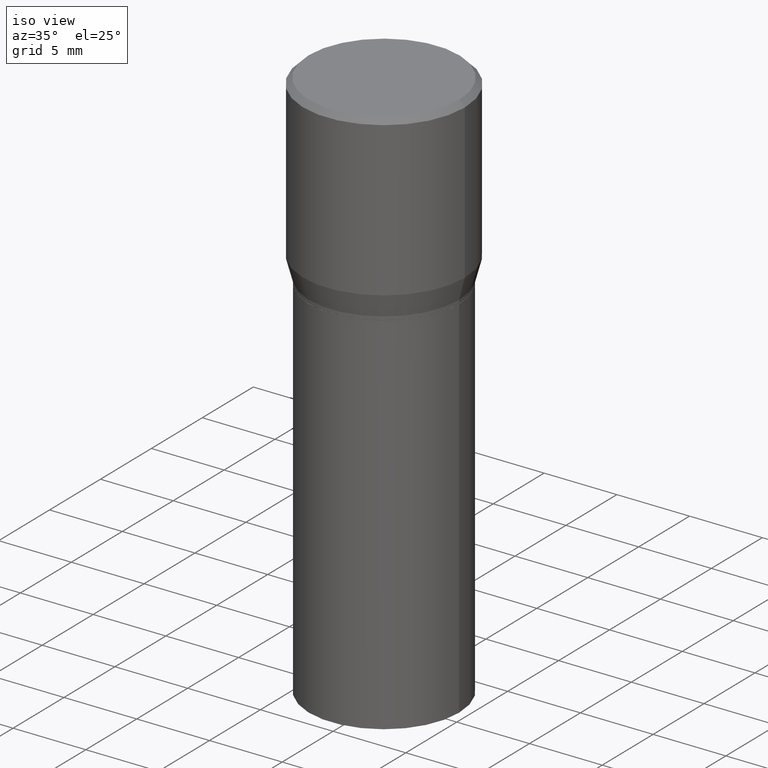
[diagram: clean part render]
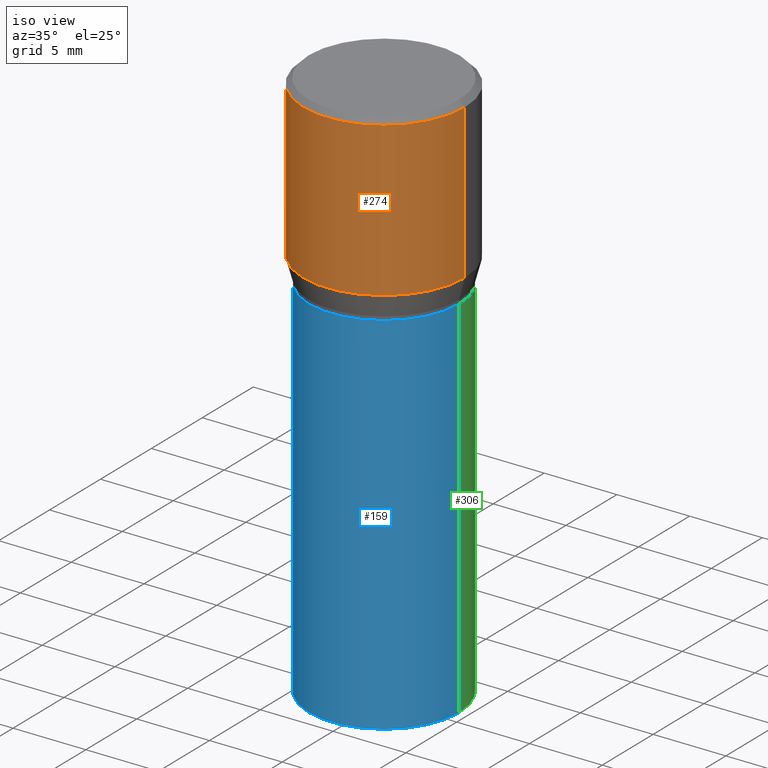
[diagram: same view with three faces highlighted in distinct colors, each labeled with its STEP entity id]
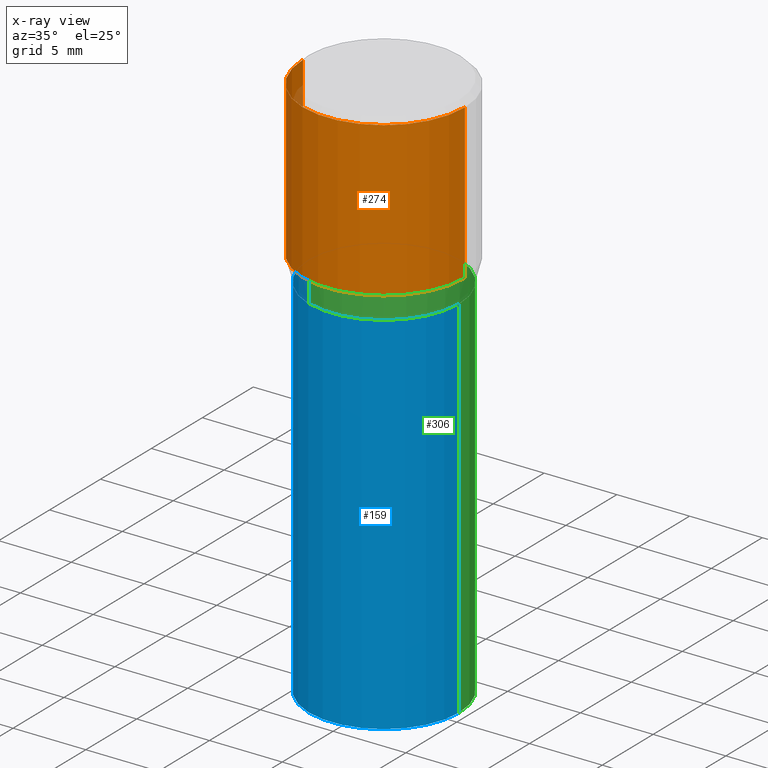
[diagram: x-ray of the same camera — body ghosted, the three highlighted faces saturated]
A machine part, iso view with three faces highlighted in distinct colors.
The next image is the same camera in x-ray (body ghosted, the three faces saturated) — at least one of them is partly hidden behind the body in this view.
Their STEP definitions:

[orange] entity #274 — the highlighted cylindrical surface (partial cylindrical patch) has radius 5.5562 mm, axis along (-0, 0, 1).
#13 = CARTESIAN_POINT ( 'NONE',  ( -0.2187500000000000000, 7.746759649129616577E-16, -0.01499999999999999944 ) ) ;
#25 = CARTESIAN_POINT ( 'NONE',  ( 0.2187500000000000000, -3.034423404785738170E-15, -0.4315934048615475138 ) ) ;
#27 = VERTEX_POINT ( 'NONE', #240 ) ;
#28 = ORIENTED_EDGE ( 'NONE', *, *, #464, .F. ) ;
#38 = AXIS2_PLACEMENT_3D ( 'NONE', #197, #88, #453 ) ;
#88 = DIRECTION ( 'NONE',  ( -2.445468806185136597E-29, 3.491481338843145583E-15, 1.000000000000000000 ) ) ;
#103 = CARTESIAN_POINT ( 'NONE',  ( 1.055448208544146876E-29, -1.506900319041867721E-15, -0.4315934048615475138 ) ) ;
#109 = CIRCLE ( 'NONE', #296, 0.2187500000000000000 ) ;
#143 = CARTESIAN_POINT ( 'NONE',  ( 0.2187500000000000000, -1.527523085743870843E-15, 1.066663669705360885E-29 ) ) ;
#148 = CARTESIAN_POINT ( 'NONE',  ( 0.2187500000000000000, -1.579895305826517922E-15, -0.01499999999999999944 ) ) ;
#165 = AXIS2_PLACEMENT_3D ( 'NONE', #447, #329, #367 ) ;
#168 = EDGE_CURVE ( 'NONE', #437, #299, #176, .T. ) ;
#176 = LINE ( 'NONE', #143, #418 ) ;
#179 = DIRECTION ( 'NONE',  ( -2.445468806185136597E-29, 3.491481338843145583E-15, 1.000000000000000000 ) ) ;
#184 = EDGE_CURVE ( 'NONE', #27, #437, #109, .T. ) ;
#185 = EDGE_LOOP ( 'NONE', ( #28, #330, #225, #415 ) ) ;
#197 = CARTESIAN_POINT ( 'NONE',  ( 3.668203209277705088E-31, -5.237222008264718399E-17, -0.01499999999999999944 ) ) ;
#200 = DIRECTION ( 'NONE',  ( -2.445468806185136877E-29, 3.491481338843145188E-15, 1.000000000000000000 ) ) ;
#225 = ORIENTED_EDGE ( 'NONE', *, *, #168, .T. ) ;
#240 = CARTESIAN_POINT ( 'NONE',  ( -0.2187500000000000000, 4.741191543335144142E-17, -0.4315934048615475138 ) ) ;
#261 = FACE_OUTER_BOUND ( 'NONE', #185, .T. ) ;
#274 = ADVANCED_FACE ( 'NONE', ( #261 ), #405, .T. ) ;
#279 = VERTEX_POINT ( 'NONE', #13 ) ;
#296 = AXIS2_PLACEMENT_3D ( 'NONE', #103, #179, #327 ) ;
#299 = VERTEX_POINT ( 'NONE', #148 ) ;
#308 = LINE ( 'NONE', #416, #385 ) ;
#317 = DIRECTION ( 'NONE',  ( -2.445468806185136877E-29, 3.491481338843145188E-15, 1.000000000000000000 ) ) ;
#327 = DIRECTION ( 'NONE',  ( 1.000000000000000000, -6.982962677686265133E-15, 0.000000000000000000 ) ) ;
#329 = DIRECTION ( 'NONE',  ( -2.445468806185136597E-29, 3.491481338843145583E-15, 1.000000000000000000 ) ) ;
#330 = ORIENTED_EDGE ( 'NONE', *, *, #184, .T. ) ;
#367 = DIRECTION ( 'NONE',  ( 1.000000000000000000, -6.982962677686266711E-15, 4.876176775795935232E-29 ) ) ;
#381 = CIRCLE ( 'NONE', #38, 0.2187500000000000000 ) ;
#385 = VECTOR ( 'NONE', #200, 39.37007874015748143 ) ;
#405 = CYLINDRICAL_SURFACE ( 'NONE', #165, 0.2187500000000000000 ) ;
#413 = EDGE_CURVE ( 'NONE', #279, #299, #381, .T. ) ;
#415 = ORIENTED_EDGE ( 'NONE', *, *, #413, .F. ) ;
#416 = CARTESIAN_POINT ( 'NONE',  ( -0.2187500000000000000, 1.554312234475219157E-15, -1.076017050993260622E-29 ) ) ;
#418 = VECTOR ( 'NONE', #317, 39.37007874015748143 ) ;
#437 = VERTEX_POINT ( 'NONE', #25 ) ;
#447 = CARTESIAN_POINT ( 'NONE',  ( 0.000000000000000000, 0.000000000000000000, 0.000000000000000000 ) ) ;
#453 = DIRECTION ( 'NONE',  ( 1.000000000000000000, -6.982962677686266711E-15, 0.000000000000000000 ) ) ;
#464 = EDGE_CURVE ( 'NONE', #27, #279, #308, .T. ) ;

[blue] entity #159 — the highlighted cylindrical surface (partial cylindrical patch) has radius 5.1587 mm, axis along (-0, 0, 1).
#5 = CIRCLE ( 'NONE', #68, 0.2031000000000000028 ) ;
#9 = CARTESIAN_POINT ( 'NONE',  ( 1.222734403092568719E-29, -1.745740669421573186E-15, -0.5000000000000001110 ) ) ;
#30 = VECTOR ( 'NONE', #189, 39.37007874015748143 ) ;
#42 = FACE_OUTER_BOUND ( 'NONE', #445, .T. ) ;
#48 = VERTEX_POINT ( 'NONE', #351 ) ;
#54 = DIRECTION ( 'NONE',  ( 1.000000000000000000, -6.982962677686264344E-15, 0.000000000000000000 ) ) ;
#68 = AXIS2_PLACEMENT_3D ( 'NONE', #182, #410, #54 ) ;
#80 = ORIENTED_EDGE ( 'NONE', *, *, #222, .T. ) ;
#113 = CARTESIAN_POINT ( 'NONE',  ( 0.2031000000000000028, -6.655461728102798952E-15, -1.500000000000000222 ) ) ;
#115 = DIRECTION ( 'NONE',  ( -2.445468806185136877E-29, 3.491481338843145188E-15, 1.000000000000000000 ) ) ;
#116 = VERTEX_POINT ( 'NONE', #113 ) ;
#117 = CIRCLE ( 'NONE', #172, 0.2031000000000000028 ) ;
#121 = CARTESIAN_POINT ( 'NONE',  ( 0.2031000000000000028, -1.418239719838080775E-15, 9.903515031641546145E-30 ) ) ;
#122 = CARTESIAN_POINT ( 'NONE',  ( -0.2031000000000000028, -2.048369042514382480E-15, -0.5000000000000001110 ) ) ;
#137 = DIRECTION ( 'NONE',  ( 1.000000000000000000, -6.982962677686266711E-15, 4.876176775795935793E-29 ) ) ;
#146 = DIRECTION ( 'NONE',  ( -2.445468806185136597E-29, 3.491481338843145583E-15, 1.000000000000000000 ) ) ;
#159 = ADVANCED_FACE ( 'NONE', ( #42 ), #281, .T. ) ;
#162 = ORIENTED_EDGE ( 'NONE', *, *, #250, .F. ) ;
#170 = CARTESIAN_POINT ( 'NONE',  ( 0.000000000000000000, 0.000000000000000000, 0.000000000000000000 ) ) ;
#172 = AXIS2_PLACEMENT_3D ( 'NONE', #9, #146, #223 ) ;
#173 = DIRECTION ( 'NONE',  ( -2.445468806185136597E-29, 3.491481338843145583E-15, 1.000000000000000000 ) ) ;
#182 = CARTESIAN_POINT ( 'NONE',  ( 3.668203209277704895E-29, -5.237222008264718177E-15, -1.500000000000000222 ) ) ;
#186 = LINE ( 'NONE', #226, #30 ) ;
#189 = DIRECTION ( 'NONE',  ( -2.445468806185136877E-29, 3.491481338843145188E-15, 1.000000000000000000 ) ) ;
#209 = AXIS2_PLACEMENT_3D ( 'NONE', #170, #173, #137 ) ;
#222 = EDGE_CURVE ( 'NONE', #440, #116, #5, .T. ) ;
#223 = DIRECTION ( 'NONE',  ( 1.000000000000000000, -6.982962677686265922E-15, 0.000000000000000000 ) ) ;
#226 = CARTESIAN_POINT ( 'NONE',  ( -0.2031000000000000028, 1.443112296328763497E-15, -9.990357168307714203E-30 ) ) ;
#247 = EDGE_CURVE ( 'NONE', #116, #48, #400, .T. ) ;
#250 = EDGE_CURVE ( 'NONE', #440, #364, #186, .T. ) ;
#257 = ORIENTED_EDGE ( 'NONE', *, *, #247, .T. ) ;
#263 = VECTOR ( 'NONE', #115, 39.37007874015748143 ) ;
#267 = CARTESIAN_POINT ( 'NONE',  ( -0.2031000000000000028, -2.048369042514382480E-15, -1.500000000000000222 ) ) ;
#281 = CYLINDRICAL_SURFACE ( 'NONE', #209, 0.2031000000000000028 ) ;
#351 = CARTESIAN_POINT ( 'NONE',  ( 0.2031000000000000028, -3.163980389259653764E-15, -0.5000000000000001110 ) ) ;
#364 = VERTEX_POINT ( 'NONE', #122 ) ;
#400 = LINE ( 'NONE', #121, #263 ) ;
#401 = ORIENTED_EDGE ( 'NONE', *, *, #406, .F. ) ;
#406 = EDGE_CURVE ( 'NONE', #364, #48, #117, .T. ) ;
#410 = DIRECTION ( 'NONE',  ( -2.445468806185136597E-29, 3.491481338843145583E-15, 1.000000000000000000 ) ) ;
#440 = VERTEX_POINT ( 'NONE', #267 ) ;
#445 = EDGE_LOOP ( 'NONE', ( #162, #80, #257, #401 ) ) ;

[green] entity #306 — the highlighted cylindrical surface (partial cylindrical patch) has radius 5.1587 mm, axis along (-0, 0, 1).
#6 = CARTESIAN_POINT ( 'NONE',  ( 1.222734403092568719E-29, -1.745740669421573186E-15, -0.5000000000000001110 ) ) ;
#10 = ORIENTED_EDGE ( 'NONE', *, *, #87, .F. ) ;
#15 = DIRECTION ( 'NONE',  ( 1.000000000000000000, -6.982962677686266711E-15, 4.876176775795935793E-29 ) ) ;
#20 = CIRCLE ( 'NONE', #326, 0.2031000000000000028 ) ;
#30 = VECTOR ( 'NONE', #189, 39.37007874015748143 ) ;
#48 = VERTEX_POINT ( 'NONE', #351 ) ;
#52 = ORIENTED_EDGE ( 'NONE', *, *, #247, .F. ) ;
#75 = DIRECTION ( 'NONE',  ( -2.445468806185136597E-29, 3.491481338843145583E-15, 1.000000000000000000 ) ) ;
#87 = EDGE_CURVE ( 'NONE', #48, #364, #20, .T. ) ;
#112 = ORIENTED_EDGE ( 'NONE', *, *, #250, .T. ) ;
#113 = CARTESIAN_POINT ( 'NONE',  ( 0.2031000000000000028, -6.655461728102798952E-15, -1.500000000000000222 ) ) ;
#115 = DIRECTION ( 'NONE',  ( -2.445468806185136877E-29, 3.491481338843145188E-15, 1.000000000000000000 ) ) ;
#116 = VERTEX_POINT ( 'NONE', #113 ) ;
#121 = CARTESIAN_POINT ( 'NONE',  ( 0.2031000000000000028, -1.418239719838080775E-15, 9.903515031641546145E-30 ) ) ;
#122 = CARTESIAN_POINT ( 'NONE',  ( -0.2031000000000000028, -2.048369042514382480E-15, -0.5000000000000001110 ) ) ;
#139 = DIRECTION ( 'NONE',  ( -2.445468806185136597E-29, 3.491481338843145583E-15, 1.000000000000000000 ) ) ;
#186 = LINE ( 'NONE', #226, #30 ) ;
#189 = DIRECTION ( 'NONE',  ( -2.445468806185136877E-29, 3.491481338843145188E-15, 1.000000000000000000 ) ) ;
#198 = AXIS2_PLACEMENT_3D ( 'NONE', #369, #75, #293 ) ;
#213 = DIRECTION ( 'NONE',  ( 1.000000000000000000, -6.982962677686265922E-15, 0.000000000000000000 ) ) ;
#224 = FACE_OUTER_BOUND ( 'NONE', #292, .T. ) ;
#226 = CARTESIAN_POINT ( 'NONE',  ( -0.2031000000000000028, 1.443112296328763497E-15, -9.990357168307714203E-30 ) ) ;
#247 = EDGE_CURVE ( 'NONE', #116, #48, #400, .T. ) ;
#250 = EDGE_CURVE ( 'NONE', #440, #364, #186, .T. ) ;
#256 = CARTESIAN_POINT ( 'NONE',  ( 0.000000000000000000, 0.000000000000000000, 0.000000000000000000 ) ) ;
#263 = VECTOR ( 'NONE', #115, 39.37007874015748143 ) ;
#266 = ORIENTED_EDGE ( 'NONE', *, *, #371, .T. ) ;
#267 = CARTESIAN_POINT ( 'NONE',  ( -0.2031000000000000028, -2.048369042514382480E-15, -1.500000000000000222 ) ) ;
#292 = EDGE_LOOP ( 'NONE', ( #266, #112, #10, #52 ) ) ;
#293 = DIRECTION ( 'NONE',  ( 1.000000000000000000, -6.982962677686264344E-15, 0.000000000000000000 ) ) ;
#306 = ADVANCED_FACE ( 'NONE', ( #224 ), #336, .T. ) ;
#326 = AXIS2_PLACEMENT_3D ( 'NONE', #6, #139, #213 ) ;
#336 = CYLINDRICAL_SURFACE ( 'NONE', #359, 0.2031000000000000028 ) ;
#351 = CARTESIAN_POINT ( 'NONE',  ( 0.2031000000000000028, -3.163980389259653764E-15, -0.5000000000000001110 ) ) ;
#359 = AXIS2_PLACEMENT_3D ( 'NONE', #256, #372, #15 ) ;
#364 = VERTEX_POINT ( 'NONE', #122 ) ;
#369 = CARTESIAN_POINT ( 'NONE',  ( 3.668203209277704895E-29, -5.237222008264718177E-15, -1.500000000000000222 ) ) ;
#371 = EDGE_CURVE ( 'NONE', #116, #440, #399, .T. ) ;
#372 = DIRECTION ( 'NONE',  ( -2.445468806185136597E-29, 3.491481338843145583E-15, 1.000000000000000000 ) ) ;
#399 = CIRCLE ( 'NONE', #198, 0.2031000000000000028 ) ;
#400 = LINE ( 'NONE', #121, #263 ) ;
#440 = VERTEX_POINT ( 'NONE', #267 ) ;